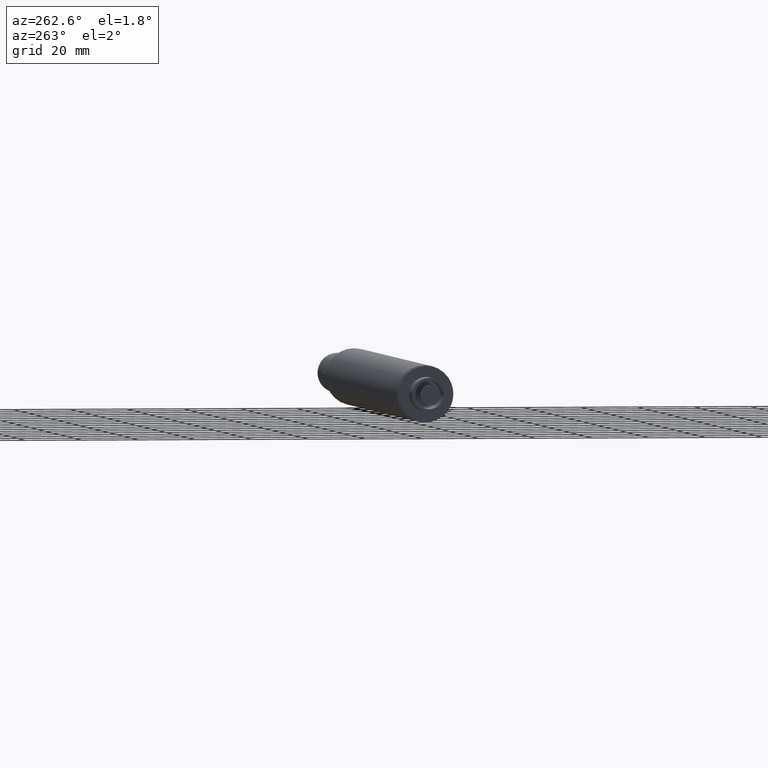
[diagram: clean part render]
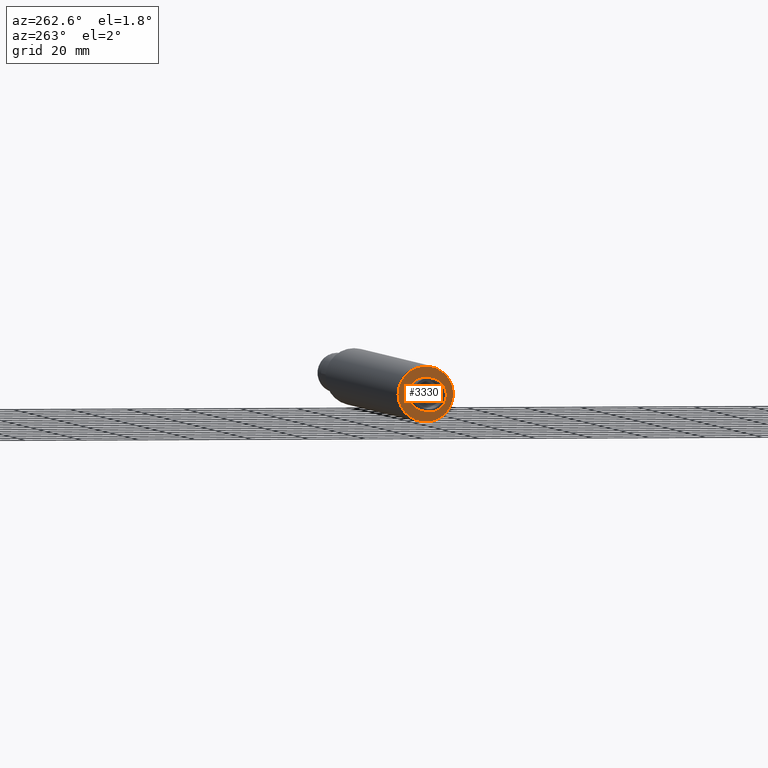
[diagram: same view with one face highlighted and labeled with its STEP entity id]
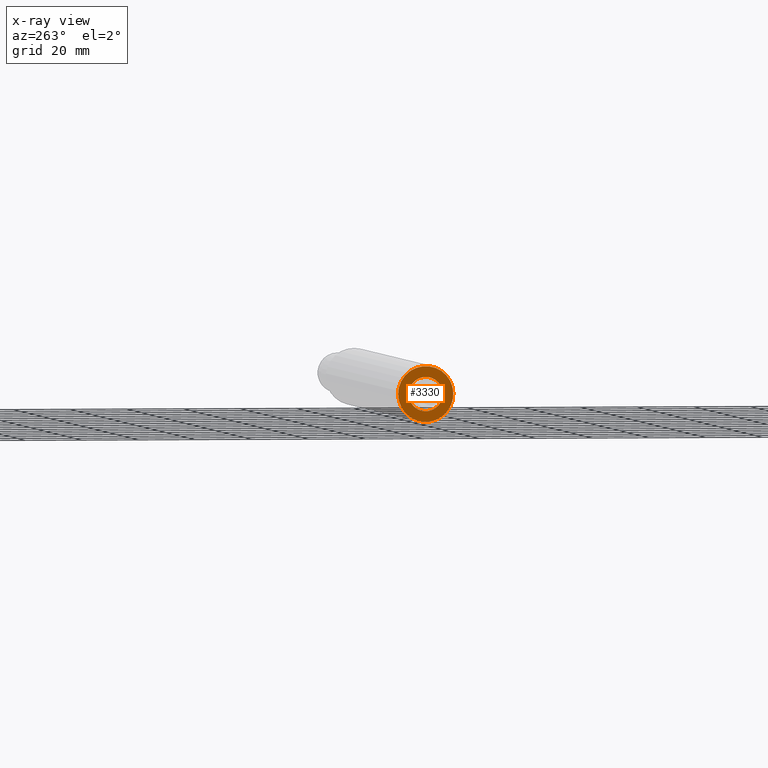
[diagram: x-ray of the same camera — body ghosted, the highlighted face saturated]
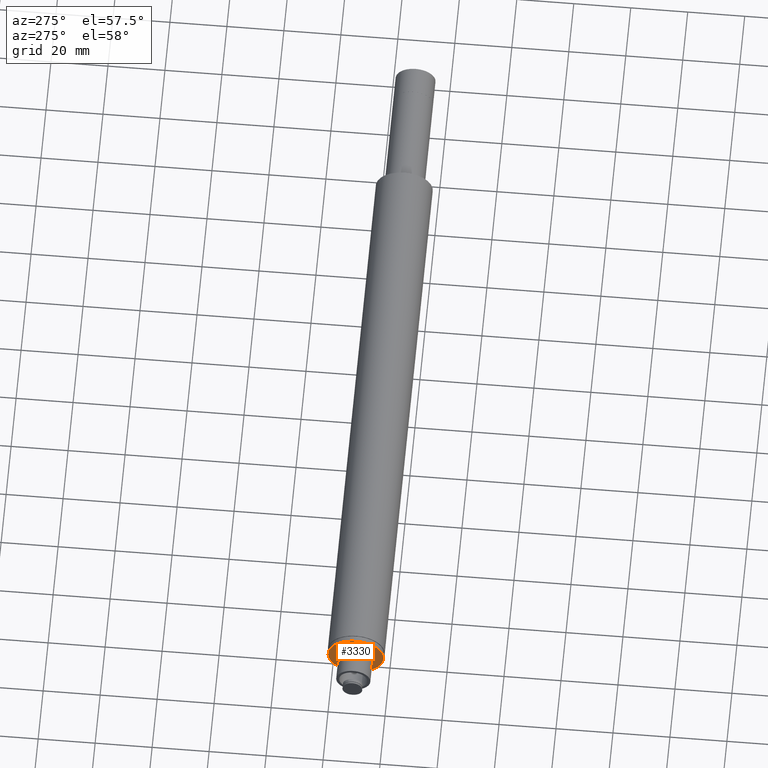
[diagram: same view with one face highlighted and labeled with its STEP entity id]
A machine part, auxiliary view. The second image highlights one B-rep face of the part: STEP entity #3330.
The next image is the same camera in x-ray: the body ghosted, the highlighted face saturated — about 0% of this face is hidden behind the body in this view.
A second angle (auxiliary view) of the same face is appended — the face is thin or edge-on in the first view.
In plain terms, the highlighted planar face has unit normal (1, -0, 0).
Its self-contained STEP definition (entity closure, byte-faithful):
#139 = AXIS2_PLACEMENT_3D ( 'NONE', #3636, #4112, #754 ) ;
#167 = CARTESIAN_POINT ( 'NONE',  ( -324.9054818016121544, -91.83589552456501792, -4.922027181850991973 ) ) ;
#224 = VERTEX_POINT ( 'NONE', #167 ) ;
#630 = ORIENTED_EDGE ( 'NONE', *, *, #4337, .F. ) ;
#705 = DIRECTION ( 'NONE',  ( -3.010268851157771351E-17, -0.5718791738431807659, -0.8203378636418295899 ) ) ;
#754 = DIRECTION ( 'NONE',  ( 0.000000000000000000, -0.5718791738431807659, -0.8203378636418295899 ) ) ;
#894 = EDGE_LOOP ( 'NONE', ( #630 ) ) ;
#1095 = CARTESIAN_POINT ( 'NONE',  ( -324.9054818016121544, -88.40462048150591556, -1.738062200271100494E-14 ) ) ;
#1113 = DIRECTION ( 'NONE',  ( 0.000000000000000000, -0.5718791738431822091, -0.8203378636418285907 ) ) ;
#1287 = EDGE_LOOP ( 'NONE', ( #2447 ) ) ;
#1305 = AXIS2_PLACEMENT_3D ( 'NONE', #1095, #2231, #1113 ) ;
#1516 = AXIS2_PLACEMENT_3D ( 'NONE', #1910, #3402, #705 ) ;
#1910 = CARTESIAN_POINT ( 'NONE',  ( -324.9054818016121544, -80.40632631099808236, -5.575821944971029787 ) ) ;
#1974 = EDGE_CURVE ( 'NONE', #3303, #3303, #2243, .T. ) ;
#2030 = CIRCLE ( 'NONE', #1305, 6.000000000000003553 ) ;
#2185 = CARTESIAN_POINT ( 'NONE',  ( -324.9054818016121544, -93.98044242647694091, -7.998294170507855405 ) ) ;
#2231 = DIRECTION ( 'NONE',  ( -1.000000000000000000, 1.216910645906267142E-16, -4.813857645835648931E-17 ) ) ;
#2243 = CIRCLE ( 'NONE', #139, 9.750000000000000000 ) ;
#2447 = ORIENTED_EDGE ( 'NONE', *, *, #1974, .F. ) ;
#2965 = PLANE ( 'NONE',  #1516 ) ;
#3005 = FACE_BOUND ( 'NONE', #894, .T. ) ;
#3303 = VERTEX_POINT ( 'NONE', #2185 ) ;
#3330 = ADVANCED_FACE ( 'NONE', ( #4064, #3005 ), #2965, .F. ) ;
#3402 = DIRECTION ( 'NONE',  ( 1.000000000000000000, -1.216910645906267142E-16, 4.813857645835650164E-17 ) ) ;
#3636 = CARTESIAN_POINT ( 'NONE',  ( -324.9054818016121544, -88.40462048150591556, -1.738062200271100494E-14 ) ) ;
#4064 = FACE_OUTER_BOUND ( 'NONE', #1287, .T. ) ;
#4112 = DIRECTION ( 'NONE',  ( 1.000000000000000000, -1.216910645906267142E-16, 4.813857645835648931E-17 ) ) ;
#4337 = EDGE_CURVE ( 'NONE', #224, #224, #2030, .T. ) ;